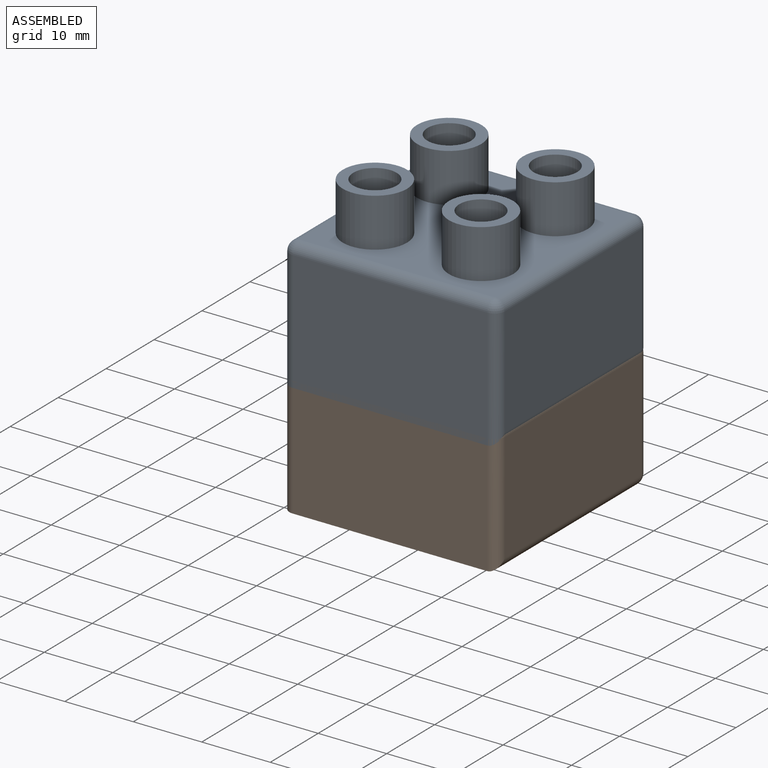
[diagram: assembled view]
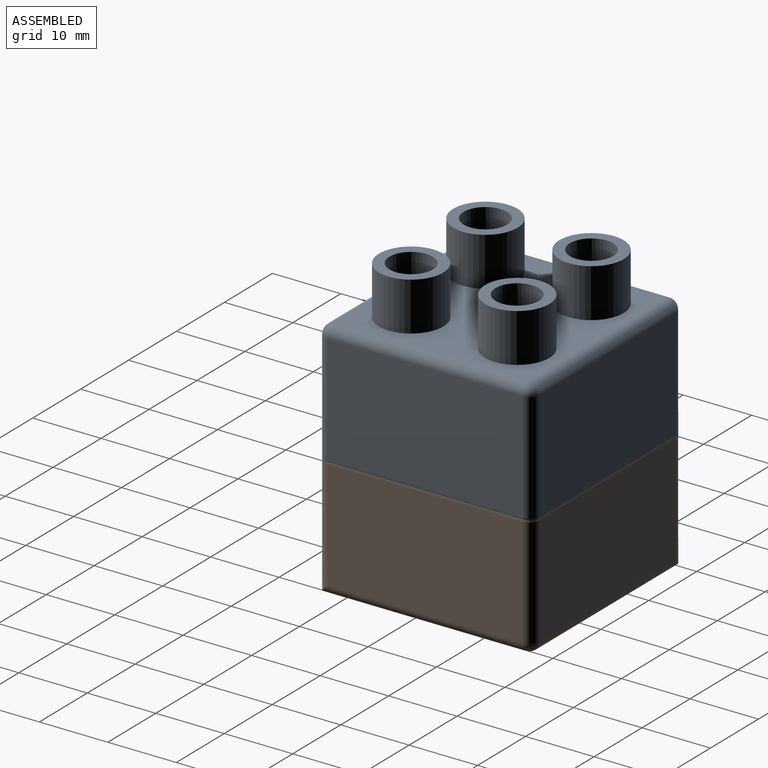
[diagram: assembled view, second angle]
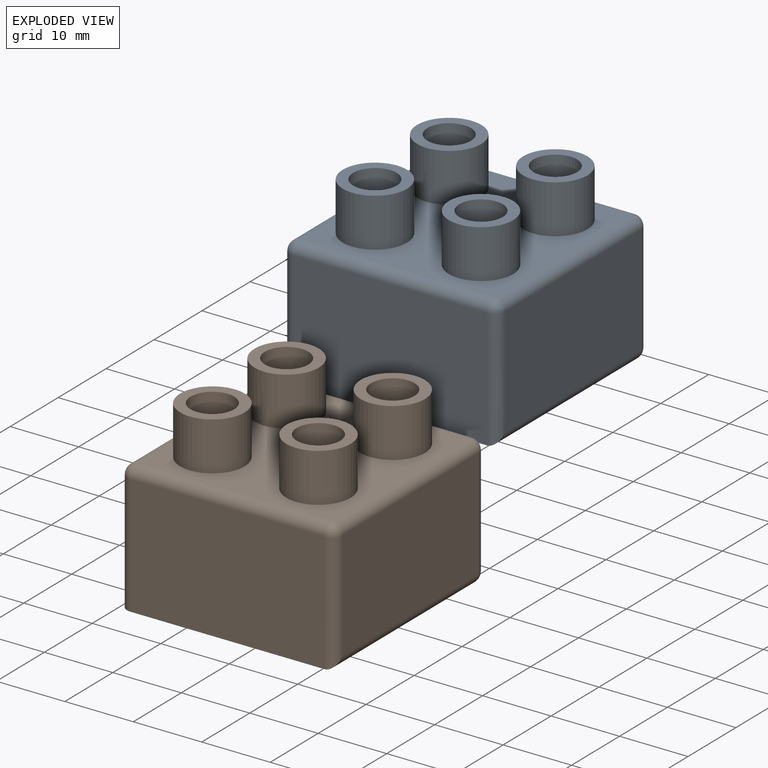
[diagram: exploded view]
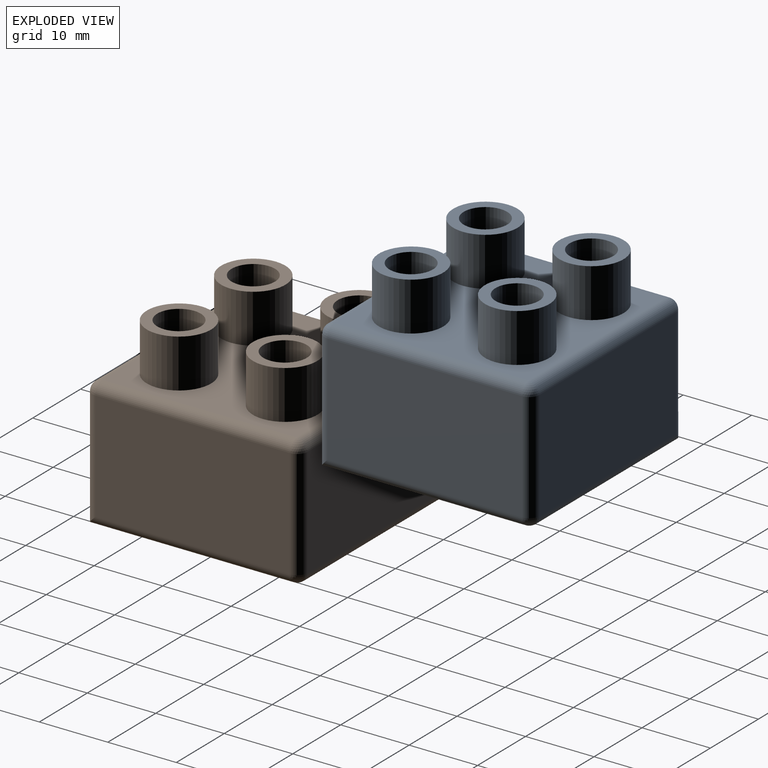
[diagram: exploded view, second angle]
ASSEMBLY  parts=2 mates=6
PART A: 46 faces, bbox 31.4x31.4x26.2 mm
  f0: plane 29.92x29.92mm, normal (0,0,-1), area 88.4mm2, adj f1,f4,f23,f26,f35,f41,f43
  f1: plane 28.4x17.53mm, normal (0,-1,0), area 497.7mm2, adj f0,f31,f35,f44
  f2: plane 28.4x16mm, normal (1,0,0), area 454.4mm2, adj f32,f40,f43,f44
  f3: plane 28.4x16mm, normal (0,1,0), area 454.4mm2, adj f34,f39,f40,f41
  f4: plane 28.4x17.53mm, normal (-1,0,0), area 497.7mm2, adj f0,f33,f35,f39
  f5: plane 28.4x28.4mm, normal (0,0,1), area 528.9mm2, adj f7,f11,f15,f19,f31,f32,f33,f34
  f6: cylinder r=3.17mm len=7.11mm, axis (0,0,-1), area 141.9mm2, adj f8,f9
  f7: cylinder r=4.7mm len=9.4mm, axis (0,0,-1), area 210mm2, adj f5,f8
  f8: plane 9.4x9.4mm, normal (0,0,1), area 37.7mm2, adj f6,f7
  f9: plane 6.35x6.35mm, normal (0,0,1), area 31.7mm2, adj f6
  f10: cylinder r=3.17mm len=7.11mm, axis (0,0,-1), area 141.9mm2, adj f12,f13
  f11: cylinder r=4.7mm len=9.4mm, axis (0,0,-1), area 210mm2, adj f5,f12
  f12: plane 9.4x9.4mm, normal (0,0,1), area 37.7mm2, adj f10,f11
  f13: plane 6.35x6.35mm, normal (0,0,1), area 31.7mm2, adj f10
  f14: cylinder r=3.17mm len=7.11mm, axis (0,0,-1), area 141.9mm2, adj f16,f17
  f15: cylinder r=4.7mm len=9.4mm, axis (0,0,-1), area 210mm2, adj f5,f16
  f16: plane 9.4x9.4mm, normal (0,0,1), area 37.7mm2, adj f14,f15
  f17: plane 6.35x6.35mm, normal (0,0,1), area 31.7mm2, adj f14
  f18: cylinder r=3.17mm len=7.11mm, axis (0,0,-1), area 141.9mm2, adj f20,f21
  f19: cylinder r=4.7mm len=9.4mm, axis (0,0,-1), area 210mm2, adj f5,f20
  f20: plane 9.4x9.4mm, normal (0,0,1), area 37.7mm2, adj f18,f19
  f21: plane 6.35x6.35mm, normal (0,0,1), area 31.7mm2, adj f18
  f22: plane 28.4x28.4mm, normal (0,0,-1), area 669.4mm2, adj f23,f24,f25,f26,f28
  f23: plane 28.4x17.53mm, normal (0,1,0), area 497.7mm2, adj f0,f22,f24,f26
  f24: plane 28.4x17.53mm, normal (-1,0,0), area 497.7mm2, adj f22,f23,f25,f43
  f25: plane 28.4x17.53mm, normal (0,-1,0), area 497.7mm2, adj f22,f24,f26,f41
  f26: plane 28.4x17.53mm, normal (1,0,0), area 497.7mm2, adj f0,f22,f23,f25
  f27: plane 13.21x13.21mm, normal (0,0,-1), area 38.9mm2, adj f28,f29
  f28: cylinder r=6.6mm len=17.53mm, axis (0,0,1), area 727.2mm2, adj f22,f27
  f29: cylinder r=5.59mm len=17.53mm, axis (0,0,1), area 615.3mm2, adj f27,f30
  f30: plane 11.18x11.18mm, normal (0,0,-1), area 98.1mm2, adj f29
  f31: cylinder r=1.52mm len=28.4mm, axis (-1,0,0), area 68mm2, adj f1,f5,f36,f45
  f32: cylinder r=1.52mm len=28.4mm, axis (0,-1,0), area 68mm2, adj f2,f5,f38,f45
  f33: cylinder r=1.52mm len=28.4mm, axis (0,1,0), area 68mm2, adj f4,f5,f36,f37
  f34: cylinder r=1.52mm len=28.4mm, axis (1,0,0), area 68mm2, adj f3,f5,f37,f38
  f35: cylinder r=1.52mm len=17.53mm, axis (0,0,-1), area 42mm2, adj f0,f1,f4,f36
  f36: sphere r=1.52mm, area 3.6mm2, adj f31,f33,f35
  f37: sphere r=1.52mm, area 3.6mm2, adj f33,f34,f39
  f38: sphere r=1.52mm, area 3.6mm2, adj f32,f34,f40
  f39: cylinder r=1.52mm len=17.53mm, axis (0,0,1), area 40.6mm2, adj f3,f4,f37,f41
  f40: cylinder r=1.52mm len=16mm, axis (0,0,-1), area 38.3mm2, adj f2,f3,f38,f42
  f41: cylinder r=1.52mm len=29.92mm, axis (-1,0,0), area 70.3mm2, adj f0,f3,f25,f39,f42
  f42: sphere r=1.52mm, area 3.6mm2, adj f40,f41,f43
  f43: cylinder r=1.52mm len=29.92mm, axis (0,1,0), area 70.3mm2, adj f0,f2,f24,f42,f44
  f44: cylinder r=1.52mm len=17.53mm, axis (0,0,1), area 40.6mm2, adj f1,f2,f43,f45
  f45: sphere r=1.52mm, area 3.6mm2, adj f31,f32,f44
PART B: same geometry as A
PLACE A t=(-27.11,-62.42,-0.15)mm
PLACE B t=(-27.11,-62.42,-16.74)mm
MATE planar B.f1 <-> A.f1  axis (0,-1,0) through (-42.84,-62.42,-7.98)mm
MATE planar A.f2 <-> B.f2  axis (1,0,0) through (-27.11,-46.69,9.37)mm
MATE planar B.f1 <-> A.f1  axis (0,-1,0) through (-42.84,-62.42,-7.98)mm
MATE planar B.f3 <-> A.f3  axis (0,1,0) through (-42.84,-30.97,-7.21)mm
MATE planar B.f1 <-> A.f1  axis (0,-1,0) through (-42.84,-62.42,-7.98)mm
MATE planar A.f1 <-> B.f1  axis (0,-1,0) through (-42.84,-62.42,8.61)mm
